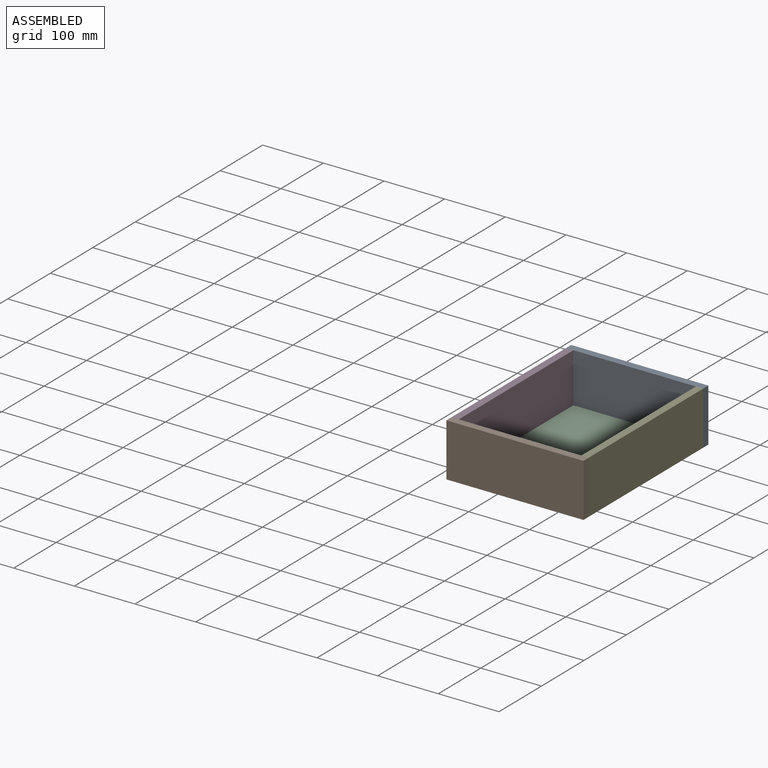
[diagram: assembled view]
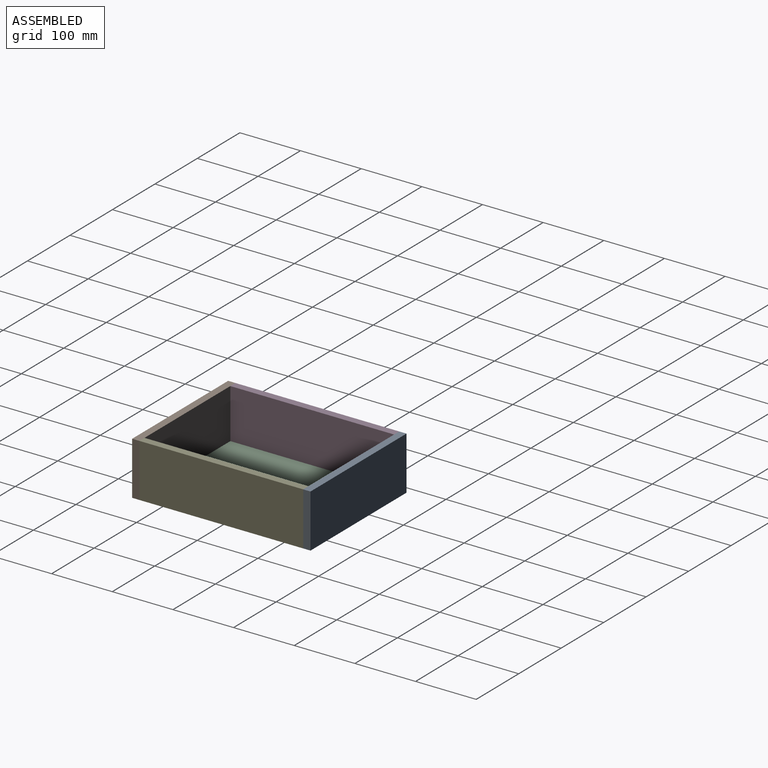
[diagram: assembled view, second angle]
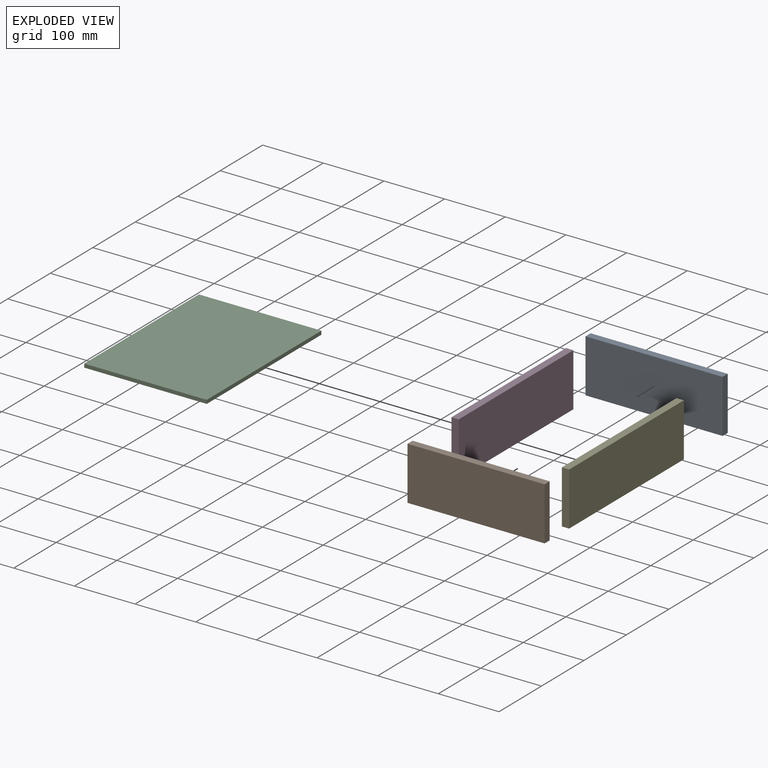
[diagram: exploded view]
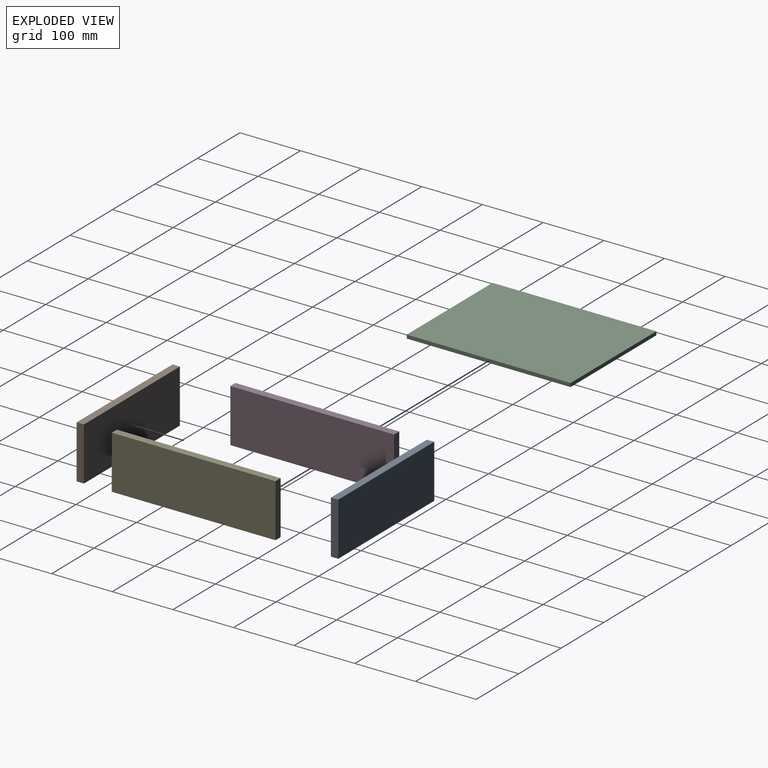
[diagram: exploded view, second angle]
ASSEMBLY  parts=5 mates=4
PART A: 6 faces, bbox 226x12x88 mm
  f0: plane 226x12mm, normal (0,0,1), area 2712mm2, adj f1,f3,f4,f5
  f1: plane 88x12mm, normal (-1,0,0), area 1056mm2, adj f0,f2,f4,f5
  f2: plane 226x12mm, normal (0,0,-1), area 2712mm2, adj f1,f3,f4,f5
  f3: plane 88x12mm, normal (1,0,0), area 1056mm2, adj f0,f2,f4,f5
  f4: plane 226x88mm, normal (0,-1,0), area 19888mm2, adj f0,f1,f2,f3
  f5: plane 226x88mm, normal (0,1,0), area 19888mm2, adj f0,f1,f2,f3
PART B: same geometry as A
PART C: 6 faces, bbox 202x270x6 mm
  f0: plane 202x6mm, normal (0,1,0), area 1212mm2, adj f1,f3,f4,f5
  f1: plane 270x6mm, normal (-1,0,0), area 1620mm2, adj f0,f2,f4,f5
  f2: plane 202x6mm, normal (0,-1,0), area 1212mm2, adj f1,f3,f4,f5
  f3: plane 270x6mm, normal (1,0,0), area 1620mm2, adj f0,f2,f4,f5
  f4: plane 270x202mm, normal (0,0,1), area 54540mm2, adj f0,f1,f2,f3
  f5: plane 270x202mm, normal (0,0,-1), area 54540mm2, adj f0,f1,f2,f3
PART D: 6 faces, bbox 12x270x88 mm
  f0: plane 270x12mm, normal (0,0,1), area 3240mm2, adj f1,f3,f4,f5
  f1: plane 88x12mm, normal (0,-1,0), area 1056mm2, adj f0,f2,f4,f5
  f2: plane 270x12mm, normal (0,0,-1), area 3240mm2, adj f1,f3,f4,f5
  f3: plane 88x12mm, normal (0,1,0), area 1056mm2, adj f0,f2,f4,f5
  f4: plane 270x88mm, normal (1,0,0), area 23760mm2, adj f0,f1,f2,f3
  f5: plane 270x88mm, normal (-1,0,0), area 23760mm2, adj f0,f1,f2,f3
PART E: same geometry as D
PLACE A t=(43.63,51.15,47.59)mm
PLACE B t=(43.63,-230.85,47.59)mm
PLACE C t=(78.14,-129.19,-2.34)mm
PLACE D t=(-76.9,-89.25,115.64)mm
PLACE E t=(137.1,-89.25,115.64)mm
MATE fastened E.f3 <-> A.f4  axis (0,1,0) through (149.1,39.15,85.66)mm
MATE fastened E.f1 <-> B.f5  axis (0,-1,0) through (149.1,-230.85,85.66)mm
MATE fastened D.f3 <-> A.f4  axis (0,1,0) through (-76.9,39.15,-2.34)mm
MATE fastened C.f1 <-> D.f4  axis (-1,0,0) through (-64.9,39.15,-2.34)mm
